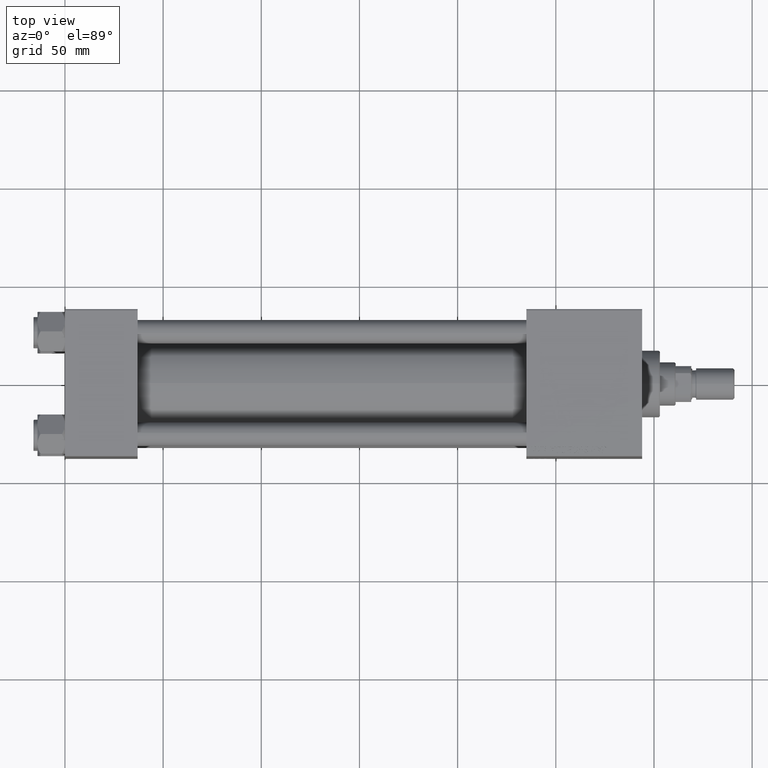
[diagram: clean part render]
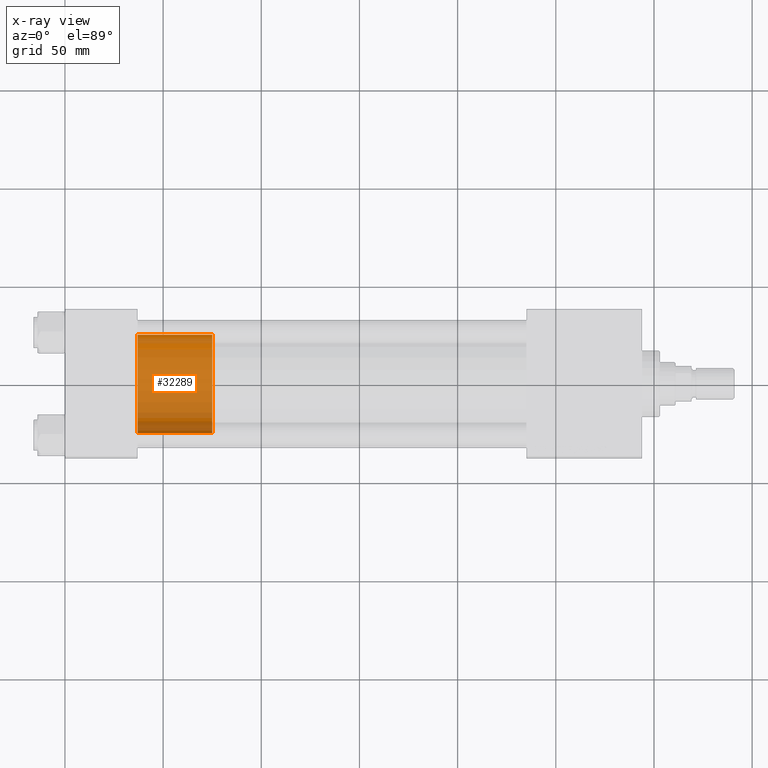
[diagram: x-ray — body ghosted, one internal face saturated and labeled with its STEP entity id]
A machine part, top view, then the same camera in x-ray: the body is ghosted and one INTERNAL B-rep face — a face not visible from any outside direction — is saturated and labeled: STEP entity #32289.
In plain terms, the highlighted cylindrical surface (partial cylindrical patch) has radius 25 mm, axis along (-1, 0, 0).
Its self-contained STEP definition (entity closure, byte-faithful):
#184 = CARTESIAN_POINT ( 'NONE',  ( 0.000000000000000000, 0.000000000000000000, 0.000000000000000000 ) ) ;
#716 = VERTEX_POINT ( 'NONE', #30429 ) ;
#3536 = CARTESIAN_POINT ( 'NONE',  ( 25.00000000000000000, 3.061616997868383043E-15, 0.000000000000000000 ) ) ;
#5603 = DIRECTION ( 'NONE',  ( -0.000000000000000000, -0.000000000000000000, -1.000000000000000000 ) ) ;
#6039 = CARTESIAN_POINT ( 'NONE',  ( 0.000000000000000000, 0.000000000000000000, 38.00000000000000000 ) ) ;
#6309 = ORIENTED_EDGE ( 'NONE', *, *, #18275, .F. ) ;
#6566 = CARTESIAN_POINT ( 'NONE',  ( 25.00000000000000000, 3.061616997868383043E-15, 38.00000000000000000 ) ) ;
#6691 = CARTESIAN_POINT ( 'NONE',  ( -25.00000000000000000, 0.000000000000000000, 0.000000000000000000 ) ) ;
#7370 = VERTEX_POINT ( 'NONE', #3536 ) ;
#8163 = CARTESIAN_POINT ( 'NONE',  ( -25.00000000000000000, 0.000000000000000000, 38.00000000000000000 ) ) ;
#9549 = VERTEX_POINT ( 'NONE', #6691 ) ;
#12009 = DIRECTION ( 'NONE',  ( 0.000000000000000000, 0.000000000000000000, 1.000000000000000000 ) ) ;
#15016 = VERTEX_POINT ( 'NONE', #31232 ) ;
#16920 = DIRECTION ( 'NONE',  ( -1.000000000000000000, 0.000000000000000000, 0.000000000000000000 ) ) ;
#17603 = ORIENTED_EDGE ( 'NONE', *, *, #39780, .T. ) ;
#18275 = EDGE_CURVE ( 'NONE', #15016, #9549, #37803, .T. ) ;
#20131 = ORIENTED_EDGE ( 'NONE', *, *, #44709, .F. ) ;
#20781 = CARTESIAN_POINT ( 'NONE',  ( 0.000000000000000000, 0.000000000000000000, 38.00000000000000000 ) ) ;
#21935 = CIRCLE ( 'NONE', #26044, 25.00000000000000000 ) ;
#23552 = VECTOR ( 'NONE', #41013, 1000.000000000000000 ) ;
#24642 = CYLINDRICAL_SURFACE ( 'NONE', #33124, 25.00000000000000000 ) ;
#25351 = AXIS2_PLACEMENT_3D ( 'NONE', #184, #12009, #35130 ) ;
#26044 = AXIS2_PLACEMENT_3D ( 'NONE', #6039, #42001, #26583 ) ;
#26110 = LINE ( 'NONE', #6566, #23552 ) ;
#26583 = DIRECTION ( 'NONE',  ( 1.000000000000000000, 0.000000000000000000, 0.000000000000000000 ) ) ;
#26734 = VECTOR ( 'NONE', #38054, 1000.000000000000000 ) ;
#30429 = CARTESIAN_POINT ( 'NONE',  ( 25.00000000000000000, 3.061616997868383043E-15, 38.00000000000000000 ) ) ;
#31232 = CARTESIAN_POINT ( 'NONE',  ( -25.00000000000000000, 0.000000000000000000, 38.00000000000000000 ) ) ;
#31780 = EDGE_LOOP ( 'NONE', ( #20131, #17603, #38151, #6309 ) ) ;
#32289 = ADVANCED_FACE ( 'NONE', ( #40555 ), #24642, .T. ) ;
#33124 = AXIS2_PLACEMENT_3D ( 'NONE', #20781, #5603, #16920 ) ;
#35130 = DIRECTION ( 'NONE',  ( 1.000000000000000000, 0.000000000000000000, 0.000000000000000000 ) ) ;
#37803 = LINE ( 'NONE', #8163, #26734 ) ;
#38054 = DIRECTION ( 'NONE',  ( -0.000000000000000000, -0.000000000000000000, -1.000000000000000000 ) ) ;
#38151 = ORIENTED_EDGE ( 'NONE', *, *, #47234, .T. ) ;
#39780 = EDGE_CURVE ( 'NONE', #716, #7370, #26110, .T. ) ;
#40555 = FACE_OUTER_BOUND ( 'NONE', #31780, .T. ) ;
#41013 = DIRECTION ( 'NONE',  ( -0.000000000000000000, -0.000000000000000000, -1.000000000000000000 ) ) ;
#42001 = DIRECTION ( 'NONE',  ( 0.000000000000000000, 0.000000000000000000, 1.000000000000000000 ) ) ;
#44709 = EDGE_CURVE ( 'NONE', #716, #15016, #21935, .T. ) ;
#47234 = EDGE_CURVE ( 'NONE', #7370, #9549, #49083, .T. ) ;
#49083 = CIRCLE ( 'NONE', #25351, 25.00000000000000000 ) ;